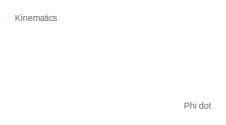
[diagram: root canvas - part 1/7, top right region]
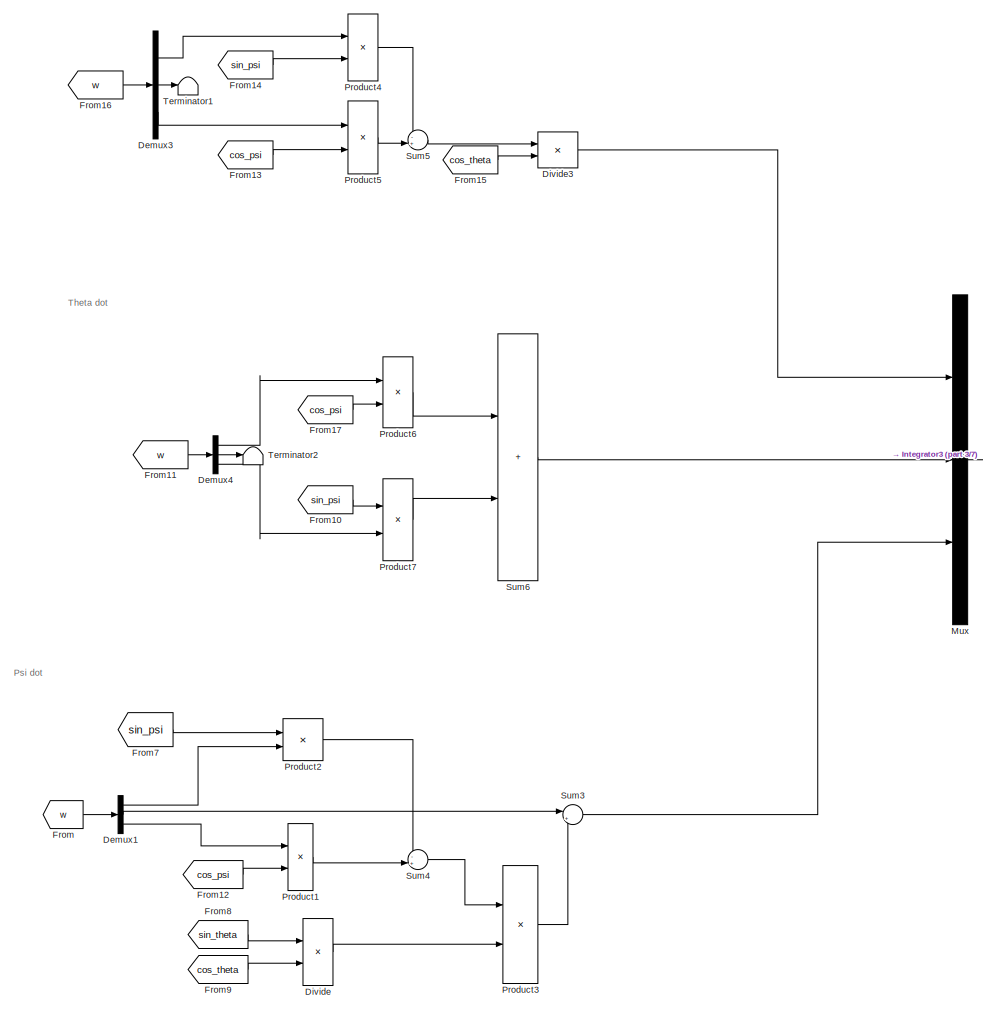
[diagram: root canvas - part 2/7, right side, full height]
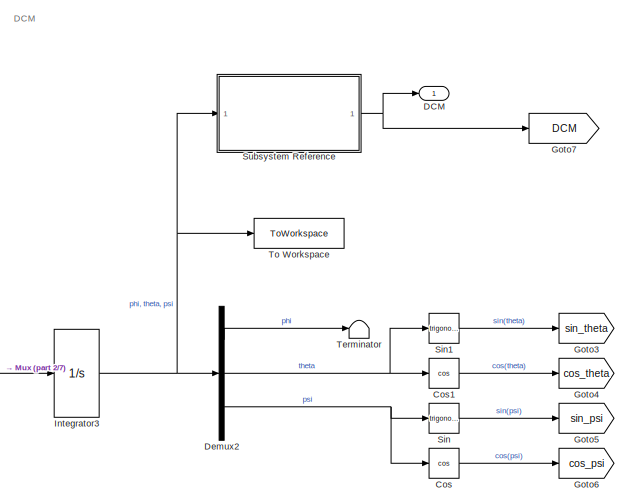
[diagram: root canvas - part 3/7, middle right region]
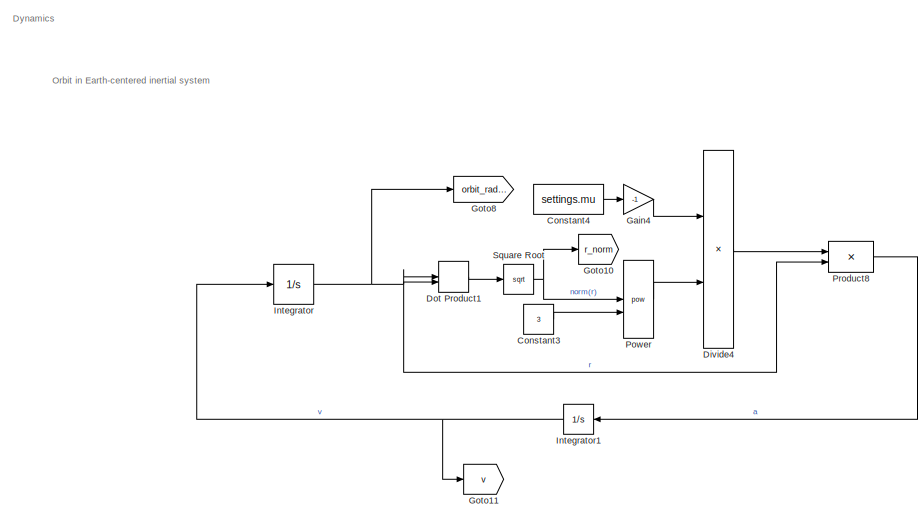
[diagram: root canvas - part 4/7, central region]
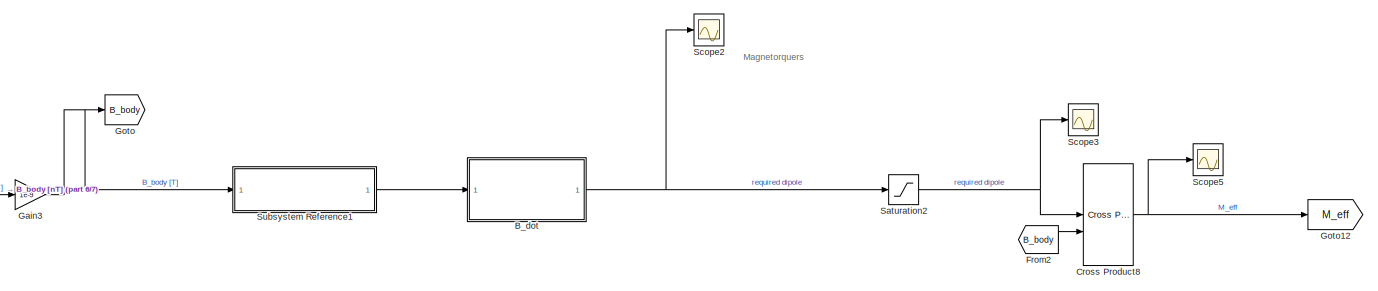
[diagram: root canvas - part 5/7, middle left region]
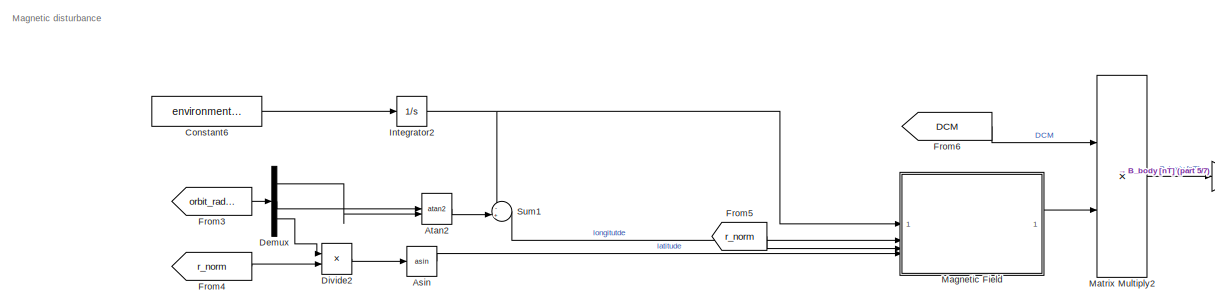
[diagram: root canvas - part 6/7, middle left region]
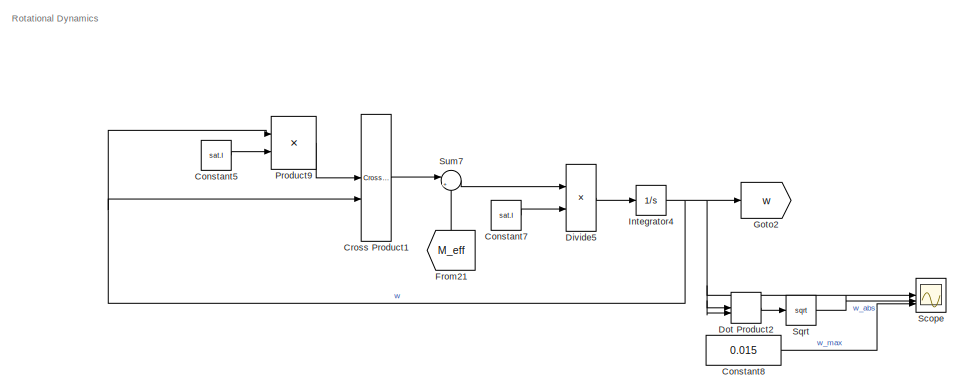
[diagram: root canvas - part 7/7, middle right region]
MODEL slx_1afc195da045
KIND model
CONFIG AbsTol = auto
CONFIG EnableMultiTasking = off
CONFIG FixedStep = 0.2
CONFIG MaxStep = auto
CONFIG MinStep = auto
CONFIG RelTol = 1e-13
CONFIG SampleTimeConstraint = Unconstrained
CONFIG SolverName = VariableStepAuto
CONFIG StartTime = 0.0
CONFIG StopTime = 18000
BLOCK [Trigonometry] Asin
  Operator = asin
BLOCK [Trigonometry] Atan2
  Operator = atan2
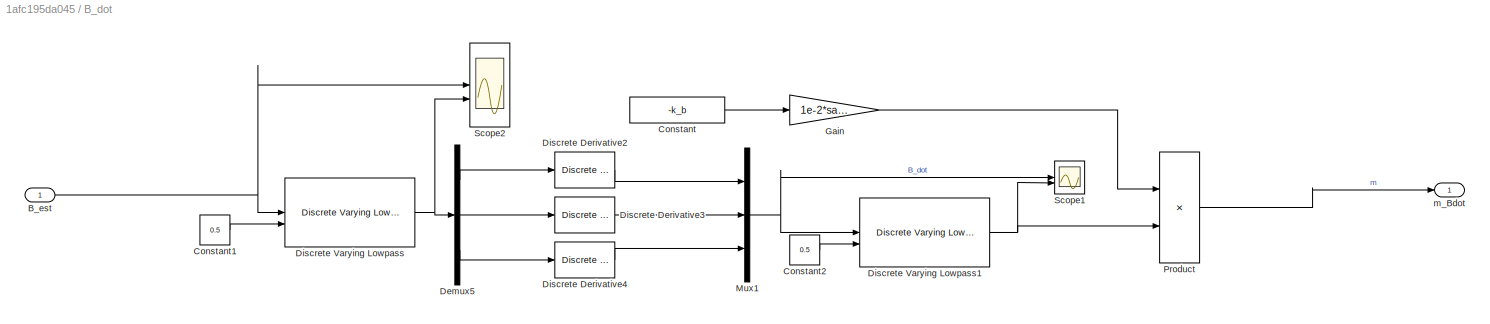
BLOCK [SubSystem] B_dot
  SystemSampleTime = 1
  TreatAsAtomicUnit = on
BLOCK [Inport] B_dot/B_est
BLOCK [Constant] B_dot/Constant
  Value = -k_b
BLOCK [Constant] B_dot/Constant1
  Value = 0.5
BLOCK [Constant] B_dot/Constant2
  SampleTime = -1
  Value = 0.5
BLOCK [Demux] B_dot/Demux5
  Outputs = 3
BLOCK [Reference] B_dot/Discrete Derivative2  REF=simulink/Discrete/Discrete Derivative
  SourceBlock = simulink/Discrete/Discrete Derivative
  SourceType = Discrete Derivative
BLOCK [Reference] B_dot/Discrete Derivative3  REF=simulink/Discrete/Discrete Derivative
  SourceBlock = simulink/Discrete/Discrete Derivative
  SourceType = Discrete Derivative
BLOCK [Reference] B_dot/Discrete Derivative4  REF=simulink/Discrete/Discrete Derivative
  SourceBlock = simulink/Discrete/Discrete Derivative
  SourceType = Discrete Derivative
BLOCK [Reference] B_dot/Discrete Varying Lowpass  REF=cstblocks/Linear Parameter Varying/Discrete Varying Lowpass
  SourceBlock = cstblocks/Linear Parameter Varying/Discrete Varying Lowpass
  SourceType = Discrete Varying Lowpass
BLOCK [Reference] B_dot/Discrete Varying Lowpass1  REF=cstblocks/Linear Parameter Varying/Discrete Varying Lowpass
  SourceBlock = cstblocks/Linear Parameter Varying/Discrete Varying Lowpass
  SourceType = Discrete Varying Lowpass
BLOCK [Gain] B_dot/Gain
  Gain = 1e-2*sat.I
BLOCK [Mux] B_dot/Mux1
  DisplayOption = bar
  Inputs = 3
BLOCK [Product] B_dot/Product
BLOCK [Scope] B_dot/Scope1
  Floating = off
  NumInputPorts = 2
  ScopeSpecificationString = Simulink.scopes.TimeScopeBlockCfg('CurrentConfiguration', extmgr.ConfigurationSet(extmgr.Configuration('Core','General UI',true),extmgr.Configuration('Core','Source UI',true),extmgr.Configuration('Sources','WiredSimulink',true,'DataLoggingVariableName','ScopeData4'),extmgr.Configuration('Visuals','Time Domain',true,'SerializedDisplays',{struct('MinYLimReal','-0.000019','MaxYLimReal','0.000013','YL...<+1671ch>
BLOCK [Scope] B_dot/Scope2
  Floating = off
  NumInputPorts = 2
  ScopeSpecificationString = Simulink.scopes.TimeScopeBlockCfg('CurrentConfiguration', extmgr.ConfigurationSet(extmgr.Configuration('Core','General UI',true),extmgr.Configuration('Core','Source UI',true),extmgr.Configuration('Sources','WiredSimulink',true,'DataLoggingVariableName','ScopeData5'),extmgr.Configuration('Visuals','Time Domain',true,'SerializedDisplays',{struct('MinYLimReal','-0.00004','MaxYLimReal','0.00009','YLab...<+1952ch>
BLOCK [Outport] B_dot/m_Bdot
BLOCK [Constant] Constant3
  Value = 3
BLOCK [Constant] Constant4
  Value = settings.mu
BLOCK [Constant] Constant5
  Value = sat.I
BLOCK [Constant] Constant6
  Value = environment.E_w
BLOCK [Constant] Constant7
  Value = sat.I
BLOCK [Constant] Constant8
  Value = 0.015
BLOCK [Trigonometry] Cos
  Operator = cos
BLOCK [Trigonometry] Cos1
  Operator = cos
BLOCK [Reference] Cross Product1  REF=matrix_library/Cross Product
  LibrarySourceBlock = simulink/Matrix\nOperations/Cross Product
  SourceBlock = matrix_library/Cross Product
  SourceType = CrossProduct
BLOCK [Reference] Cross Product8  REF=matrix_library/Cross Product
  LibrarySourceBlock = simulink/Matrix\nOperations/Cross Product
  SourceBlock = matrix_library/Cross Product
  SourceType = CrossProduct
BLOCK [Outport] DCM
BLOCK [Demux] Demux
  Outputs = 3
BLOCK [Demux] Demux1
  Outputs = 3
BLOCK [Demux] Demux2
  Outputs = 3
BLOCK [Demux] Demux3
  Outputs = 3
BLOCK [Demux] Demux4
  Outputs = 3
BLOCK [Product] Divide
  Inputs = */
BLOCK [Product] Divide2
  Inputs = */
BLOCK [Product] Divide3
  Inputs = */
BLOCK [Product] Divide4
  Inputs = */
BLOCK [Product] Divide5
  Inputs = */
BLOCK [DotProduct] Dot Product1
  OutDataTypeStr = Inherit: Inherit via internal rule
BLOCK [DotProduct] Dot Product2
  OutDataTypeStr = Inherit: Inherit via internal rule
BLOCK [From] From
  GotoTag = w
BLOCK [From] From10
  GotoTag = sin_psi
BLOCK [From] From11
  GotoTag = w
BLOCK [From] From12
  GotoTag = cos_psi
BLOCK [From] From13
  GotoTag = cos_psi
BLOCK [From] From14
  GotoTag = sin_psi
BLOCK [From] From15
  GotoTag = cos_theta
BLOCK [From] From16
  GotoTag = w
BLOCK [From] From17
  GotoTag = cos_psi
BLOCK [From] From2
  GotoTag = B_body
  TagVisibility = global
BLOCK [From] From21
  GotoTag = M_eff
  NameLocation = right
BLOCK [From] From3
  GotoTag = orbit_radius
  TagVisibility = global
BLOCK [From] From4
  GotoTag = r_norm
  TagVisibility = global
BLOCK [From] From5
  GotoTag = r_norm
  TagVisibility = global
BLOCK [From] From6
  GotoTag = DCM
  TagVisibility = global
BLOCK [From] From7
  GotoTag = sin_psi
BLOCK [From] From8
  GotoTag = sin_theta
BLOCK [From] From9
  GotoTag = cos_theta
BLOCK [Gain] Gain3
  Gain = 1e-9
BLOCK [Gain] Gain4
  Gain = -1
BLOCK [Goto] Goto
  GotoTag = B_body
  TagVisibility = global
BLOCK [Goto] Goto10
  GotoTag = r_norm
  TagVisibility = global
BLOCK [Goto] Goto11
  GotoTag = v
  TagVisibility = global
BLOCK [Goto] Goto12
  GotoTag = M_eff
BLOCK [Goto] Goto2
  GotoTag = w
BLOCK [Goto] Goto3
  GotoTag = sin_theta
BLOCK [Goto] Goto4
  GotoTag = cos_theta
BLOCK [Goto] Goto5
  GotoTag = sin_psi
BLOCK [Goto] Goto6
  GotoTag = cos_psi
BLOCK [Goto] Goto7
  GotoTag = DCM
  TagVisibility = global
BLOCK [Goto] Goto8
  GotoTag = orbit_radius
  TagVisibility = global
BLOCK [Integrator] Integrator
  InitialCondition = r0
BLOCK [Integrator] Integrator1
  InitialCondition = v0
  NameLocation = top
BLOCK [Integrator] Integrator2
  InitialCondition = environment.theta_G0
BLOCK [Integrator] Integrator3
  InitialCondition = settings.E0
  WrapState = on
BLOCK [Integrator] Integrator4
  InitialCondition = settings.w0
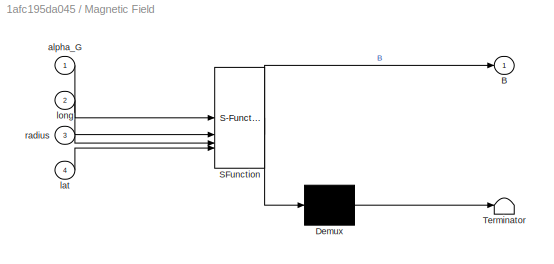
BLOCK [SubSystem] Magnetic Field
  ErrorFcn = Stateflow.Translate.translate
  LibrarySourceBlock = simulink/User-Defined\nFunctions/MATLAB Function
  PermitHierarchicalResolution = ExplicitOnly
  SFBlockType = MATLAB Function
  TreatAsAtomicUnit = on
BLOCK [Demux] Magnetic Field/ Demux 
  Outputs = 1
BLOCK [S-Function] Magnetic Field/ SFunction 
  EnableBusSupport = on
  FunctionName = sf_sfun
  Parameters = environment,settings
  PortCounts = [4 2]
  SFcnIsStateOwnerBlock = off
  SFunctionDeploymentMode = off
  Tag = Stateflow S-Function 2
BLOCK [Terminator] Magnetic Field/ Terminator 
BLOCK [Outport] Magnetic Field/B
BLOCK [Inport] Magnetic Field/alpha_G
BLOCK [Inport] Magnetic Field/lat
  Port = 4
BLOCK [Inport] Magnetic Field/long
  Port = 2
BLOCK [Inport] Magnetic Field/radius
  Port = 3
BLOCK [Product] Matrix Multiply2
  Multiplication = Matrix(*)
BLOCK [Mux] Mux
  DisplayOption = bar
  Inputs = 3
BLOCK [Math] Power
  Operator = pow
BLOCK [Product] Product1
BLOCK [Product] Product2
BLOCK [Product] Product3
BLOCK [Product] Product4
BLOCK [Product] Product5
BLOCK [Product] Product6
BLOCK [Product] Product7
BLOCK [Product] Product8
BLOCK [Product] Product9
BLOCK [Saturate] Saturation2
  LowerLimit = -120
  UpperLimit = 120
BLOCK [Scope] Scope
  Floating = off
  NumInputPorts = 3
  ScopeSpecificationString = Simulink.scopes.TimeScopeBlockCfg('CurrentConfiguration', extmgr.ConfigurationSet(extmgr.Configuration('Core','General UI',true),extmgr.Configuration('Core','Source UI',true),extmgr.Configuration('Sources','WiredSimulink',true,'DataLoggingVariableName','ScopeData2'),extmgr.Configuration('Visuals','Time Domain',true,'SerializedDisplays',{struct('MinYLimReal','-0.10232','MaxYLimReal','0.11651','YLab...<+1575ch>
BLOCK [Scope] Scope2
  Floating = off
  NumInputPorts = 1
  ScopeSpecificationString = Simulink.scopes.TimeScopeBlockCfg('CurrentConfiguration', extmgr.ConfigurationSet(extmgr.Configuration('Core','General UI',true),extmgr.Configuration('Core','Source UI',true),extmgr.Configuration('Sources','WiredSimulink',true,'DataLoggingVariableName','ScopeData2'),extmgr.Configuration('Visuals','Time Domain',true,'SerializedDisplays',{struct('MinYLimReal','-291.80389','MaxYLimReal','290.106','YL...<+1445ch>
BLOCK [Scope] Scope3
  Floating = off
  NumInputPorts = 1
  ScopeSpecificationString = Simulink.scopes.TimeScopeBlockCfg('CurrentConfiguration', extmgr.ConfigurationSet(extmgr.Configuration('Core','General UI',true),extmgr.Configuration('Core','Source UI',true),extmgr.Configuration('Sources','WiredSimulink',true,'DataLoggingVariableName','ScopeData2'),extmgr.Configuration('Visuals','Time Domain',true,'SerializedDisplays',{struct('MinYLimReal','-150.00000','MaxYLimReal','150.00000','...<+1570ch>
BLOCK [Scope] Scope5
  Floating = off
  NumInputPorts = 1
  ScopeSpecificationString = Simulink.scopes.TimeScopeBlockCfg('CurrentConfiguration', extmgr.ConfigurationSet(extmgr.Configuration('Core','General UI',true),extmgr.Configuration('Core','Source UI',true),extmgr.Configuration('Sources','WiredSimulink',true,'DataLoggingVariableName','ScopeData3'),extmgr.Configuration('Visuals','Time Domain',true,'SerializedDisplays',{struct('MinYLimReal','-0.01147','MaxYLimReal','0.01153','YLab...<+1459ch>
BLOCK [Trigonometry] Sin
BLOCK [Trigonometry] Sin1
BLOCK [Sqrt] Sqrt
BLOCK [Sqrt] Square Root
BLOCK [SubSystem] Subsystem Reference
  ReferencedSubsystem = A312
BLOCK [SubSystem] Subsystem Reference1
  ReferencedSubsystem = magnetic_sensor
  SystemSampleTime = 1
  TreatAsAtomicUnit = on
BLOCK [Sum] Sum1
  Inputs = -+|
BLOCK [Sum] Sum3
  Inputs = |+-
BLOCK [Sum] Sum4
  Inputs = -+|
BLOCK [Sum] Sum5
  Inputs = -+|
BLOCK [Sum] Sum6
  IconShape = rectangular
BLOCK [Sum] Sum7
  Inputs = |++
BLOCK [Terminator] Terminator
BLOCK [Terminator] Terminator1
BLOCK [Terminator] Terminator2
BLOCK [ToWorkspace] To Workspace
  FixptAsFi = on
  MaxDataPoints = inf
  SampleTime = -1
  VariableName = E_312
ANNOTATION (root): DCM
ANNOTATION (root): Dynamics
ANNOTATION (root): Kinematics
ANNOTATION (root): Magnetic disturbance
ANNOTATION (root): Magnetorquers
ANNOTATION (root): Orbit in Earth-centered inertial system
ANNOTATION (root): Phi dot
ANNOTATION (root): Psi dot
ANNOTATION (root): Rotational Dynamics
ANNOTATION (root): Theta dot
LINE Asin:1 -> Magnetic Field:4
LINE Atan2:1 -> Sum1:2
NET B_dot/B_est:1 -> B_dot/Discrete Varying Lowpass:1, B_dot/Scope2:1
LINE B_dot/Constant1:1 -> B_dot/Discrete Varying Lowpass:2
LINE B_dot/Constant2:1 -> B_dot/Discrete Varying Lowpass1:2
LINE B_dot/Constant:1 -> B_dot/Gain:1
LINE B_dot/Demux5:1 -> B_dot/Discrete Derivative2:1
LINE B_dot/Demux5:2 -> B_dot/Discrete Derivative3:1
LINE B_dot/Demux5:3 -> B_dot/Discrete Derivative4:1
LINE B_dot/Discrete Derivative2:1 -> B_dot/Mux1:1
LINE B_dot/Discrete Derivative3:1 -> B_dot/Mux1:2
LINE B_dot/Discrete Derivative4:1 -> B_dot/Mux1:3
NET B_dot/Discrete Varying Lowpass1:1 -> B_dot/Product:2, B_dot/Scope1:2
NET B_dot/Discrete Varying Lowpass:1 -> B_dot/Demux5:1, B_dot/Scope2:2
LINE B_dot/Gain:1 -> B_dot/Product:1
NET B_dot/Mux1:1 -> B_dot/Discrete Varying Lowpass1:1, B_dot/Scope1:1
LINE B_dot/Product:1 -> B_dot/m_Bdot:1
NET B_dot:1 -> Saturation2:1, Scope2:1
LINE Constant3:1 -> Power:2
LINE Constant4:1 -> Gain4:1
LINE Constant5:1 -> Product9:2
LINE Constant6:1 -> Integrator2:1
LINE Constant7:1 -> Divide5:2
LINE Constant8:1 -> Scope:3
LINE Cos1:1 -> Goto4:1
LINE Cos:1 -> Goto6:1
LINE Cross Product1:1 -> Sum7:1
NET Cross Product8:1 -> Goto12:1, Scope5:1
LINE Demux1:1 -> Product2:2
LINE Demux1:2 -> Sum3:1
LINE Demux1:3 -> Product1:1
LINE Demux2:1 -> Terminator:1
NET Demux2:2 -> Cos1:1, Sin1:1
NET Demux2:3 -> Cos:1, Sin:1
LINE Demux3:1 -> Product4:1
LINE Demux3:2 -> Terminator1:1
LINE Demux3:3 -> Product5:1
LINE Demux4:1 -> Product6:1
LINE Demux4:2 -> Terminator2:1
LINE Demux4:3 -> Product7:2
LINE Demux:1 -> Atan2:2
LINE Demux:2 -> Atan2:1
LINE Demux:3 -> Divide2:1
LINE Divide2:1 -> Asin:1
LINE Divide3:1 -> Mux:1
LINE Divide4:1 -> Product8:1
LINE Divide5:1 -> Integrator4:1
LINE Divide:1 -> Product3:2
LINE Dot Product1:1 -> Square Root:1
LINE Dot Product2:1 -> Sqrt:1
LINE From10:1 -> Product7:1
LINE From11:1 -> Demux4:1
LINE From12:1 -> Product1:2
LINE From13:1 -> Product5:2
LINE From14:1 -> Product4:2
LINE From15:1 -> Divide3:2
LINE From16:1 -> Demux3:1
LINE From17:1 -> Product6:2
LINE From21:1 -> Sum7:2
LINE From2:1 -> Cross Product8:2
LINE From3:1 -> Demux:1
LINE From4:1 -> Divide2:2
LINE From5:1 -> Magnetic Field:3
LINE From6:1 -> Matrix Multiply2:1
LINE From7:1 -> Product2:1
LINE From8:1 -> Divide:1
LINE From9:1 -> Divide:2
LINE From:1 -> Demux1:1
NET Gain3:1 -> Goto:1, Subsystem Reference1:1
LINE Gain4:1 -> Divide4:1
NET Integrator1:1 -> Goto11:1, Integrator:1
NET Integrator2:1 -> Magnetic Field:1, Sum1:1
NET Integrator3:1 -> Demux2:1, Subsystem Reference:1, To Workspace:1
NET Integrator4:1 -> Cross Product1:2, Dot Product2:1, Dot Product2:2, Goto2:1, Product9:1, Scope:1
NET Integrator:1 -> Dot Product1:1, Dot Product1:2, Goto8:1, Product8:2
LINE Magnetic Field:1 -> Matrix Multiply2:2
LINE Matrix Multiply2:1 -> Gain3:1
LINE Mux:1 -> Integrator3:1
LINE Power:1 -> Divide4:2
LINE Product1:1 -> Sum4:2
LINE Product2:1 -> Sum4:1
LINE Product3:1 -> Sum3:2
LINE Product4:1 -> Sum5:1
LINE Product5:1 -> Sum5:2
LINE Product6:1 -> Sum6:1
LINE Product7:1 -> Sum6:2
LINE Product8:1 -> Integrator1:1
LINE Product9:1 -> Cross Product1:1
NET Saturation2:1 -> Cross Product8:1, Scope3:1
LINE Sin1:1 -> Goto3:1
LINE Sin:1 -> Goto5:1
LINE Sqrt:1 -> Scope:2
NET Square Root:1 -> Goto10:1, Power:1
LINE Subsystem Reference1:1 -> B_dot:1
NET Subsystem Reference:1 -> DCM:1, Goto7:1
LINE Sum1:1 -> Magnetic Field:2
LINE Sum3:1 -> Mux:3
LINE Sum4:1 -> Product3:1
LINE Sum5:1 -> Divide3:1
LINE Sum6:1 -> Mux:2
LINE Sum7:1 -> Divide5:1
note: NET lines group one-source signal fan-out (src -> all destinations, sorted); 1:1 wires keep LINE
CHART Magnetic Field states=1 transitions=1
  STATE_LABEL 'eML_blk_kernel()'
  STATE_LABEL 'SCRIPT:\nfunction B = magneticField(alpha_G,long,radius,lat,environment,settings)\n%{  \n    Return the magnetic field component in inertial reference frame\n\n%}\ntheta = (pi/2-lat);     % theta is the colatitude [rad]\nalpha = long + alpha_G; \n\ng = environment.WMM.g;\nh = environment.WMM.h;\nK = environment.WMM.K;\nR = environment.R;\nN = settings.N;\n\n%% P-dP\n% validated through the P and dP tables in "Jer...<+2264ch>'
CHART  states=0 transitions=0
